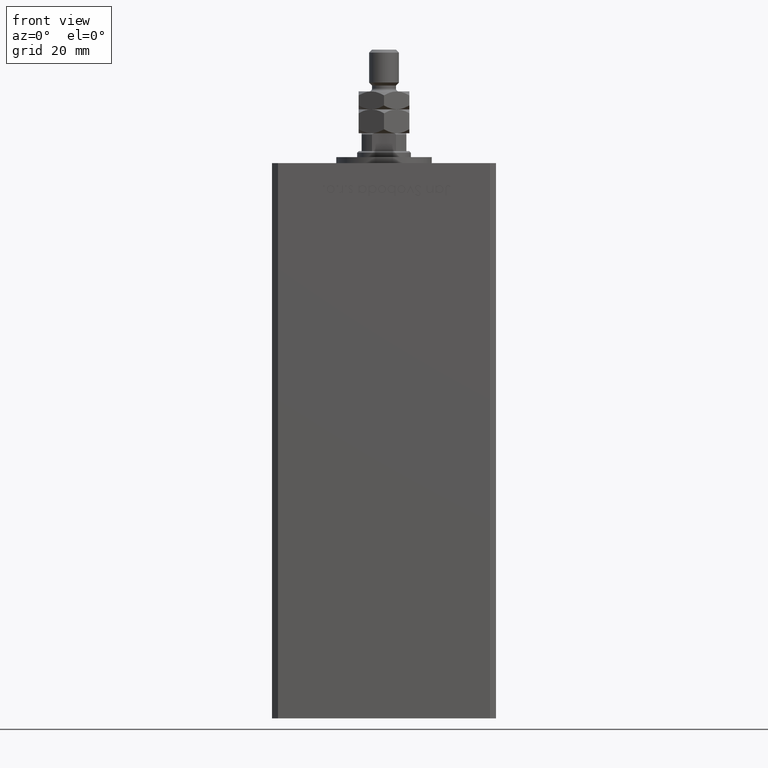
[diagram: clean part render]
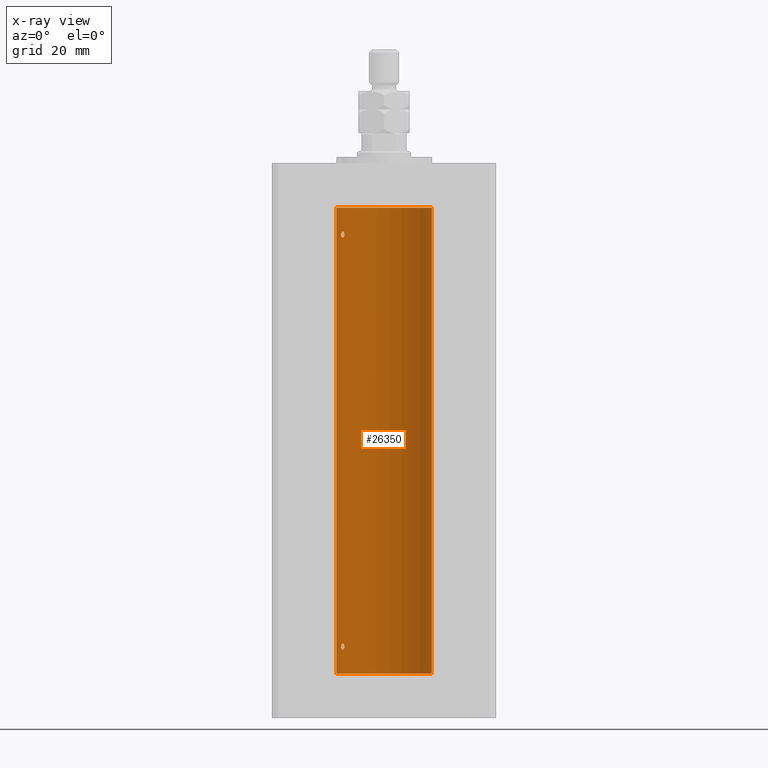
[diagram: x-ray — body ghosted, one internal face saturated and labeled with its STEP entity id]
A machine part, front view, then the same camera in x-ray: the body is ghosted and one INTERNAL B-rep face — a face not visible from any outside direction — is saturated and labeled: STEP entity #26350.
In plain terms, the highlighted cylindrical surface (partial cylindrical patch) has radius 16 mm, axis along (-0, -0, -1).
Its self-contained STEP definition (entity closure, byte-faithful):
#64 = CARTESIAN_POINT ( 'NONE',  ( -14.38749456993815556, 6.999999999999997335, 8.857147409635411250 ) ) ;
#294 = VECTOR ( 'NONE', #14299, 1000.000000000000000 ) ;
#831 = CARTESIAN_POINT ( 'NONE',  ( -13.23400746336172240, 8.992294519018086518, 146.8578145590230406 ) ) ;
#1095 = ORIENTED_EDGE ( 'NONE', *, *, #48914, .F. ) ;
#1115 = CARTESIAN_POINT ( 'NONE',  ( -13.32426099938365027, 8.858246960865852060, 8.468874877532968526 ) ) ;
#1503 = ORIENTED_EDGE ( 'NONE', *, *, #18750, .F. ) ;
#2379 = CARTESIAN_POINT ( 'NONE',  ( -14.31660136508398828, 7.144151923086063505, 146.4646217954444865 ) ) ;
#2418 = CARTESIAN_POINT ( 'NONE',  ( -13.22875655532296157, 8.999999999999994671, 147.1406447609177803 ) ) ;
#2643 = CARTESIAN_POINT ( 'NONE',  ( -13.91838063522421010, 7.892966471903945624, 145.9981483133087465 ) ) ;
#3149 = ORIENTED_EDGE ( 'NONE', *, *, #24749, .F. ) ;
#3994 = ORIENTED_EDGE ( 'NONE', *, *, #40837, .F. ) ;
#4406 = CARTESIAN_POINT ( 'NONE',  ( -14.11621438951177332, 7.533308783217010252, 8.106571071839512754 ) ) ;
#4522 = VERTEX_POINT ( 'NONE', #11213 ) ;
#5183 = VERTEX_POINT ( 'NONE', #14477 ) ;
#5537 = CYLINDRICAL_SURFACE ( 'NONE', #45556, 16.00000000000000000 ) ;
#5965 = EDGE_LOOP ( 'NONE', ( #3994, #7133 ) ) ;
#6161 = CARTESIAN_POINT ( 'NONE',  ( -13.98699950016872151, 7.770591669637114229, 146.0184768166484446 ) ) ;
#6698 = CARTESIAN_POINT ( 'NONE',  ( -13.32426099938365383, 8.858246960865844954, 146.4688748775330112 ) ) ;
#6981 = EDGE_LOOP ( 'NONE', ( #1503, #7751, #13870, #44003 ) ) ;
#7133 = ORIENTED_EDGE ( 'NONE', *, *, #38918, .F. ) ;
#7246 = CARTESIAN_POINT ( 'NONE',  ( -16.00000000000000000, 0.000000000000000000, 156.0000000000000000 ) ) ;
#7305 = CARTESIAN_POINT ( 'NONE',  ( -14.38749456993815912, 6.999999999999998224, 147.0000000000000284 ) ) ;
#7402 = CARTESIAN_POINT ( 'NONE',  ( -13.22875655532295447, 8.999999999999996447, 9.140644760917734146 ) ) ;
#7751 = ORIENTED_EDGE ( 'NONE', *, *, #32493, .T. ) ;
#8483 = CARTESIAN_POINT ( 'NONE',  ( -13.22875655532295092, 8.999999999999994671, 8.929565622361636201 ) ) ;
#8906 = CARTESIAN_POINT ( 'NONE',  ( -13.70792461986390798, 8.256614593260307444, 147.9966215356423334 ) ) ;
#9261 = VERTEX_POINT ( 'NONE', #28555 ) ;
#9425 = CARTESIAN_POINT ( 'NONE',  ( -14.27521483392928836, 7.227035590538638310, 147.6478598706881940 ) ) ;
#9970 = CARTESIAN_POINT ( 'NONE',  ( -13.49759407097375075, 8.592283911330223845, 146.1840991521277147 ) ) ;
#10696 = DIRECTION ( 'NONE',  ( -0.000000000000000000, -0.000000000000000000, -1.000000000000000000 ) ) ;
#10785 = CARTESIAN_POINT ( 'NONE',  ( -13.22875655532295625, 8.999999999999994671, 146.9295656223616504 ) ) ;
#10822 = CARTESIAN_POINT ( 'NONE',  ( -13.37741691572086111, 8.778212469423007036, 147.6408828602271512 ) ) ;
#11212 = CARTESIAN_POINT ( 'NONE',  ( -13.32457971225032445, 8.857769707964649797, 9.531999662746555302 ) ) ;
#11213 = CARTESIAN_POINT ( 'NONE',  ( -13.22875655532295447, 8.999999999999996447, 9.000000000000000000 ) ) ;
#12552 = CARTESIAN_POINT ( 'NONE',  ( -14.31660136508399184, 7.144151923086058176, 8.464621795444474017 ) ) ;
#12824 = CARTESIAN_POINT ( 'NONE',  ( -13.98699950016872151, 7.770591669637119558, 8.018476816648481886 ) ) ;
#13265 = EDGE_CURVE ( 'NONE', #20362, #9261, #20281, .T. ) ;
#13870 = ORIENTED_EDGE ( 'NONE', *, *, #13265, .T. ) ;
#14299 = DIRECTION ( 'NONE',  ( -0.000000000000000000, -0.000000000000000000, -1.000000000000000000 ) ) ;
#14477 = CARTESIAN_POINT ( 'NONE',  ( -14.38749456993815912, 6.999999999999997335, 9.000000000000000000 ) ) ;
#14585 = CARTESIAN_POINT ( 'NONE',  ( -14.17528142432533755, 7.421143801852455368, 146.1739430735387089 ) ) ;
#14768 = DIRECTION ( 'NONE',  ( -1.000000000000000000, 0.000000000000000000, 0.000000000000000000 ) ) ;
#15056 = DIRECTION ( 'NONE',  ( 1.000000000000000000, 0.000000000000000000, 0.000000000000000000 ) ) ;
#15279 = CARTESIAN_POINT ( 'NONE',  ( -13.22875655532295447, 8.999999999999996447, 9.000000000000000000 ) ) ;
#15544 = CARTESIAN_POINT ( 'NONE',  ( -13.24976519864029179, 8.969293778684576779, 9.281535226335156707 ) ) ;
#16502 = CARTESIAN_POINT ( 'NONE',  ( -13.98878315975728803, 7.767347947480344850, 147.9805461432612788 ) ) ;
#17137 = EDGE_CURVE ( 'NONE', #36395, #9261, #28059, .T. ) ;
#17277 = EDGE_LOOP ( 'NONE', ( #3149, #1095 ) ) ;
#17301 = CARTESIAN_POINT ( 'NONE',  ( -14.38749456993815734, 6.999999999999997335, 147.1426254415242738 ) ) ;
#17417 = CARTESIAN_POINT ( 'NONE',  ( -13.23400746336172951, 8.992294519018086518, 8.857814559023015732 ) ) ;
#17493 = VECTOR ( 'NONE', #45007, 1000.000000000000000 ) ;
#18296 = FACE_BOUND ( 'NONE', #5965, .T. ) ;
#18520 = AXIS2_PLACEMENT_3D ( 'NONE', #37936, #45024, #53708 ) ;
#18547 = VERTEX_POINT ( 'NONE', #7305 ) ;
#18750 = EDGE_CURVE ( 'NONE', #20040, #36395, #31405, .T. ) ;
#19202 = CARTESIAN_POINT ( 'NONE',  ( -13.26838749541400908, 8.941532915076043864, 146.6562177939213711 ) ) ;
#20040 = VERTEX_POINT ( 'NONE', #43990 ) ;
#20281 = LINE ( 'NONE', #7246, #17493 ) ;
#20362 = VERTEX_POINT ( 'NONE', #26013 ) ;
#20974 = CARTESIAN_POINT ( 'NONE',  ( -14.38749456993815912, 6.999999999999997335, 9.000000000000000000 ) ) ;
#21234 = CARTESIAN_POINT ( 'NONE',  ( -14.17528142432533755, 7.421143801852455368, 8.173943073538659121 ) ) ;
#22736 = CARTESIAN_POINT ( 'NONE',  ( -13.70481462797717676, 8.258098555717509726, 146.0259974772911562 ) ) ;
#23050 = CARTESIAN_POINT ( 'NONE',  ( -13.22875655532295802, 8.999999999999996447, 147.0000000000000284 ) ) ;
#23276 = CARTESIAN_POINT ( 'NONE',  ( -14.37250282441143945, 7.031013007322939323, 146.7168569960373077 ) ) ;
#23431 = CARTESIAN_POINT ( 'NONE',  ( -14.31650799088418324, 7.144337649771912879, 9.535522627373689275 ) ) ;
#24237 = CARTESIAN_POINT ( 'NONE',  ( -13.98878315975729159, 7.767347947480346626, 9.980546143261280534 ) ) ;
#24749 = EDGE_CURVE ( 'NONE', #5183, #4522, #46082, .T. ) ;
#24786 = CARTESIAN_POINT ( 'NONE',  ( -13.26838749541400198, 8.941532915076040311, 8.656217793921369363 ) ) ;
#25050 = CARTESIAN_POINT ( 'NONE',  ( -13.37674940693422521, 8.779234808442870630, 8.360244157126784259 ) ) ;
#25316 = CARTESIAN_POINT ( 'NONE',  ( -13.91838063522420832, 7.892966471903941184, 7.998148313308679036 ) ) ;
#25588 = CARTESIAN_POINT ( 'NONE',  ( -13.70481462797718031, 8.258098555717506173, 8.025997477291133109 ) ) ;
#26013 = CARTESIAN_POINT ( 'NONE',  ( -16.00000000000000000, 0.000000000000000000, 156.0000000000000000 ) ) ;
#26263 = CARTESIAN_POINT ( 'NONE',  ( 16.00000000000000000, 1.959434878635765131E-15, 156.0000000000000000 ) ) ;
#26350 = ADVANCED_FACE ( 'NONE', ( #26994, #35412, #18296 ), #5537, .F. ) ;
#26809 = CARTESIAN_POINT ( 'NONE',  ( -14.11621438951177687, 7.533308783217008475, 146.1065710718395110 ) ) ;
#26994 = FACE_OUTER_BOUND ( 'NONE', #6981, .T. ) ;
#27080 = CARTESIAN_POINT ( 'NONE',  ( -13.22875655532295802, 8.999999999999996447, 147.0000000000000284 ) ) ;
#27353 = CARTESIAN_POINT ( 'NONE',  ( -13.25390108270225120, 8.962947079338391632, 146.7214357623584533 ) ) ;
#27394 = CARTESIAN_POINT ( 'NONE',  ( -13.55800260393081835, 8.498809056167509368, 147.9036434462101397 ) ) ;
#28059 = CIRCLE ( 'NONE', #35850, 16.00000000000000000 ) ;
#28111 = CIRCLE ( 'NONE', #18520, 16.00000000000000000 ) ;
#28555 = CARTESIAN_POINT ( 'NONE',  ( -16.00000000000000000, 0.000000000000000000, 0.000000000000000000 ) ) ;
#28581 = CARTESIAN_POINT ( 'NONE',  ( -14.17576283486774535, 7.420212263225985261, 9.825253034304354927 ) ) ;
#28856 = CARTESIAN_POINT ( 'NONE',  ( -13.56386909142669950, 8.487613976483636691, 8.118224297996075478 ) ) ;
#29010 = CARTESIAN_POINT ( 'NONE',  ( -14.37227256866306213, 7.031482256185711321, 147.2844572409765078 ) ) ;
#29394 = CARTESIAN_POINT ( 'NONE',  ( -13.25390108270225298, 8.962947079338388079, 8.721435762358455079 ) ) ;
#29808 = CARTESIAN_POINT ( 'NONE',  ( -13.91892506969882071, 7.891973478508848672, 148.0015521226324040 ) ) ;
#30819 = CARTESIAN_POINT ( 'NONE',  ( -13.22875655532295802, 8.999999999999996447, 147.0000000000000284 ) ) ;
#31152 = CARTESIAN_POINT ( 'NONE',  ( -14.38749456993816267, 6.999999999999999112, 146.8571474096354450 ) ) ;
#31405 = LINE ( 'NONE', #26263, #294 ) ;
#32114 = CARTESIAN_POINT ( 'NONE',  ( -14.11618354197461400, 7.533333301880478672, 9.893207651933416003 ) ) ;
#32493 = EDGE_CURVE ( 'NONE', #20040, #20362, #28111, .T. ) ;
#33084 = CARTESIAN_POINT ( 'NONE',  ( -14.31650799088418147, 7.144337649771908438, 147.5355226273736946 ) ) ;
#34399 = CARTESIAN_POINT ( 'NONE',  ( 16.00000000000000000, 1.959434878635765131E-15, 0.000000000000000000 ) ) ;
#35232 = CARTESIAN_POINT ( 'NONE',  ( -13.77582987033440709, 8.139210687602719929, 146.0021105458418447 ) ) ;
#35412 = FACE_BOUND ( 'NONE', #17277, .T. ) ;
#35542 = CARTESIAN_POINT ( 'NONE',  ( -13.24976519864029179, 8.969293778684573226, 147.2815352263351940 ) ) ;
#35850 = AXIS2_PLACEMENT_3D ( 'NONE', #40050, #44401, #15056 ) ;
#36395 = VERTEX_POINT ( 'NONE', #34399 ) ;
#37281 = CARTESIAN_POINT ( 'NONE',  ( -13.22875655532295447, 8.999999999999996447, 9.000000000000000000 ) ) ;
#37479 = B_SPLINE_CURVE_WITH_KNOTS ( 'NONE', 3,
 ( #52353, #31152, #23276, #2379, #48284, #14585, #26809, #6161, #2643, #35232, #22736, #51820, #9970, #47740, #6698, #19202, #27353, #831, #10785, #27080 ),
 .UNSPECIFIED., .F., .F.,
 ( 4, 2, 2, 2, 2, 2, 2, 2, 2, 4 ),
 ( 0.000000000000000000, 0.0004222090241339633240, 0.0008444180482679266480, 0.001266627072401889809, 0.001688836096535853296, 0.002111045120669816783, 0.002533254144803779619, 0.002955463168937742888, 0.003166567681004761603, 0.003377672193071779884 ),
 .UNSPECIFIED. ) ;
#37936 = CARTESIAN_POINT ( 'NONE',  ( 0.000000000000000000, 0.000000000000000000, 156.0000000000000000 ) ) ;
#38391 = VERTEX_POINT ( 'NONE', #30819 ) ;
#38918 = EDGE_CURVE ( 'NONE', #38391, #18547, #44118, .T. ) ;
#40001 = CARTESIAN_POINT ( 'NONE',  ( -14.38749456993816445, 6.999999999999997335, 9.142625441524202756 ) ) ;
#40050 = CARTESIAN_POINT ( 'NONE',  ( 0.000000000000000000, 0.000000000000000000, 0.000000000000000000 ) ) ;
#40543 = CARTESIAN_POINT ( 'NONE',  ( -13.91892506969882959, 7.891973478508852224, 10.00155212263243953 ) ) ;
#40837 = EDGE_CURVE ( 'NONE', #18547, #38391, #37479, .T. ) ;
#41065 = CARTESIAN_POINT ( 'NONE',  ( -14.37227256866306213, 7.031482256185707769, 9.284457240976479397 ) ) ;
#41776 = CARTESIAN_POINT ( 'NONE',  ( -14.17576283486774891, 7.420212263225987925, 147.8252530343044100 ) ) ;
#42313 = CARTESIAN_POINT ( 'NONE',  ( -14.38749456993815912, 6.999999999999998224, 147.0000000000000284 ) ) ;
#43990 = CARTESIAN_POINT ( 'NONE',  ( 16.00000000000000000, 1.959434878635765131E-15, 156.0000000000000000 ) ) ;
#44003 = ORIENTED_EDGE ( 'NONE', *, *, #17137, .F. ) ;
#44118 = B_SPLINE_CURVE_WITH_KNOTS ( 'NONE', 3,
 ( #23050, #2418, #35542, #48051, #10822, #27394, #8906, #29808, #16502, #45599, #41776, #9425, #33084, #29010, #17301, #42313 ),
 .UNSPECIFIED., .F., .F.,
 ( 4, 2, 2, 2, 2, 2, 2, 4 ),
 ( 0.003377672193071779884, 0.003799209865779855366, 0.004220747538487930849, 0.005063822883904134722, 0.005485360556612237093, 0.005906898229320339463, 0.006328435902028442701, 0.006749973574736545072 ),
 .UNSPECIFIED. ) ;
#44401 = DIRECTION ( 'NONE',  ( -0.000000000000000000, 0.000000000000000000, 1.000000000000000000 ) ) ;
#44623 = CARTESIAN_POINT ( 'NONE',  ( -13.70792461986390620, 8.256614593260307444, 9.996621535642271184 ) ) ;
#45007 = DIRECTION ( 'NONE',  ( -0.000000000000000000, -0.000000000000000000, -1.000000000000000000 ) ) ;
#45024 = DIRECTION ( 'NONE',  ( -0.000000000000000000, 0.000000000000000000, 1.000000000000000000 ) ) ;
#45158 = CARTESIAN_POINT ( 'NONE',  ( -14.38749456993815912, 6.999999999999997335, 9.000000000000000000 ) ) ;
#45434 = CARTESIAN_POINT ( 'NONE',  ( -13.77582987033441064, 8.139210687602712824, 8.002110545841816247 ) ) ;
#45556 = AXIS2_PLACEMENT_3D ( 'NONE', #52005, #10696, #14768 ) ;
#45599 = CARTESIAN_POINT ( 'NONE',  ( -14.11618354197461400, 7.533333301880474231, 147.8932076519334373 ) ) ;
#45976 = CARTESIAN_POINT ( 'NONE',  ( -14.37250282441143767, 7.031013007322936659, 8.716856996037261496 ) ) ;
#46082 = B_SPLINE_CURVE_WITH_KNOTS ( 'NONE', 3,
 ( #20974, #64, #45976, #12552, #46504, #21234, #4406, #12824, #25316, #45434, #25588, #28856, #50048, #25050, #1115, #24786, #29394, #17417, #8483, #37281 ),
 .UNSPECIFIED., .F., .F.,
 ( 4, 2, 2, 2, 2, 2, 2, 2, 2, 4 ),
 ( 0.000000000000000000, 0.0004222090241339719976, 0.0008444180482679439952, 0.001266627072401915830, 0.001688836096535887990, 0.002111045120669860151, 0.002533254144803831660, 0.002955463168937803604, 0.003166567681004790660, 0.003377672193071777282 ),
 .UNSPECIFIED. ) ;
#46504 = CARTESIAN_POINT ( 'NONE',  ( -14.27547848986622014, 7.226527013162185931, 8.352555730181528304 ) ) ;
#47740 = CARTESIAN_POINT ( 'NONE',  ( -13.37674940693422876, 8.779234808442867077, 146.3602441571267718 ) ) ;
#47890 = B_SPLINE_CURVE_WITH_KNOTS ( 'NONE', 3,
 ( #15279, #7402, #15544, #11212, #49240, #48701, #44623, #40543, #24237, #32114, #28581, #48969, #23431, #41065, #40001, #45158 ),
 .UNSPECIFIED., .F., .F.,
 ( 4, 2, 2, 2, 2, 2, 2, 4 ),
 ( 0.003377672193071777282, 0.003799209865779874882, 0.004220747538487972482, 0.005063822883904168549, 0.005485360556612268318, 0.005906898229320367219, 0.006328435902028466120, 0.006749973574736565889 ),
 .UNSPECIFIED. ) ;
#48051 = CARTESIAN_POINT ( 'NONE',  ( -13.32457971225032622, 8.857769707964648020, 147.5319996627465855 ) ) ;
#48284 = CARTESIAN_POINT ( 'NONE',  ( -14.27547848986622370, 7.226527013162184154, 146.3525557301815354 ) ) ;
#48701 = CARTESIAN_POINT ( 'NONE',  ( -13.55800260393082546, 8.498809056167521803, 9.903643446210175227 ) ) ;
#48914 = EDGE_CURVE ( 'NONE', #4522, #5183, #47890, .T. ) ;
#48969 = CARTESIAN_POINT ( 'NONE',  ( -14.27521483392929014, 7.227035590538633869, 9.647859870688195727 ) ) ;
#49240 = CARTESIAN_POINT ( 'NONE',  ( -13.37741691572085934, 8.778212469423014142, 9.640882860227099727 ) ) ;
#50048 = CARTESIAN_POINT ( 'NONE',  ( -13.49759407097374897, 8.592283911330223845, 8.184099152127670251 ) ) ;
#51820 = CARTESIAN_POINT ( 'NONE',  ( -13.56386909142669772, 8.487613976483636691, 146.1182242979961359 ) ) ;
#52005 = CARTESIAN_POINT ( 'NONE',  ( 0.000000000000000000, 0.000000000000000000, 156.0000000000000000 ) ) ;
#52353 = CARTESIAN_POINT ( 'NONE',  ( -14.38749456993815912, 6.999999999999998224, 147.0000000000000284 ) ) ;
#53708 = DIRECTION ( 'NONE',  ( 1.000000000000000000, 0.000000000000000000, 0.000000000000000000 ) ) ;